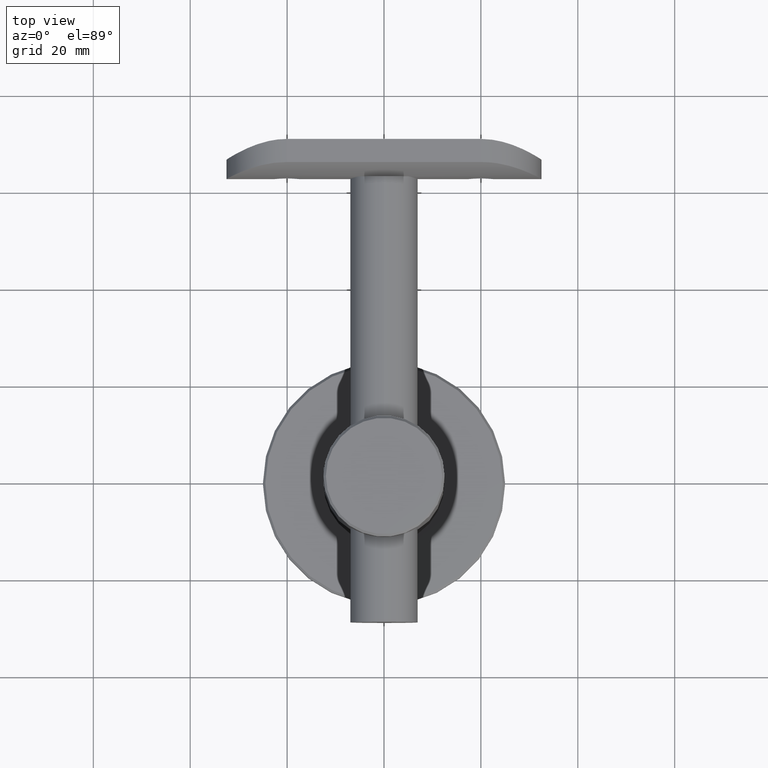
[diagram: clean part render]
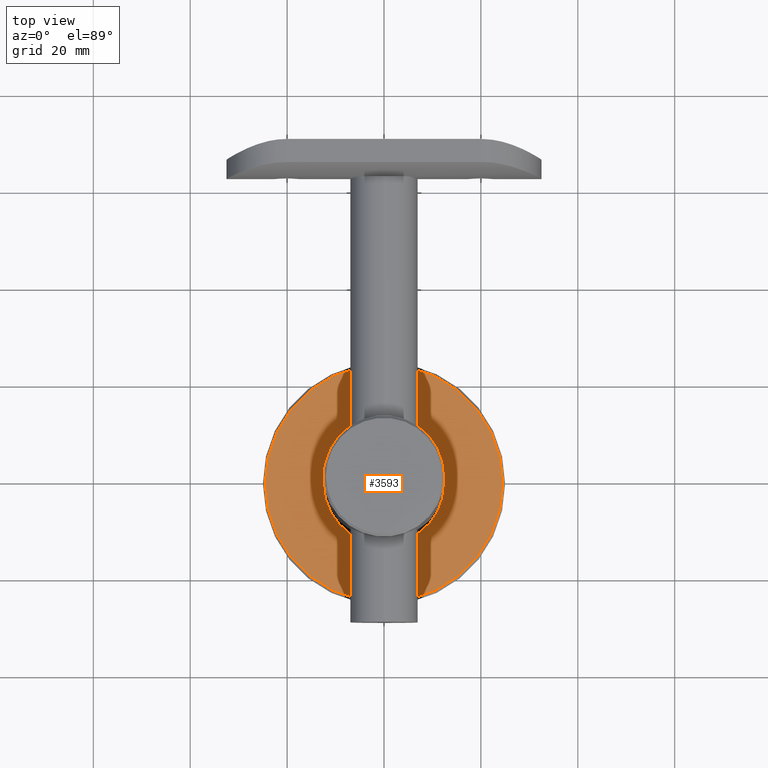
[diagram: same view with one face highlighted and labeled with its STEP entity id]
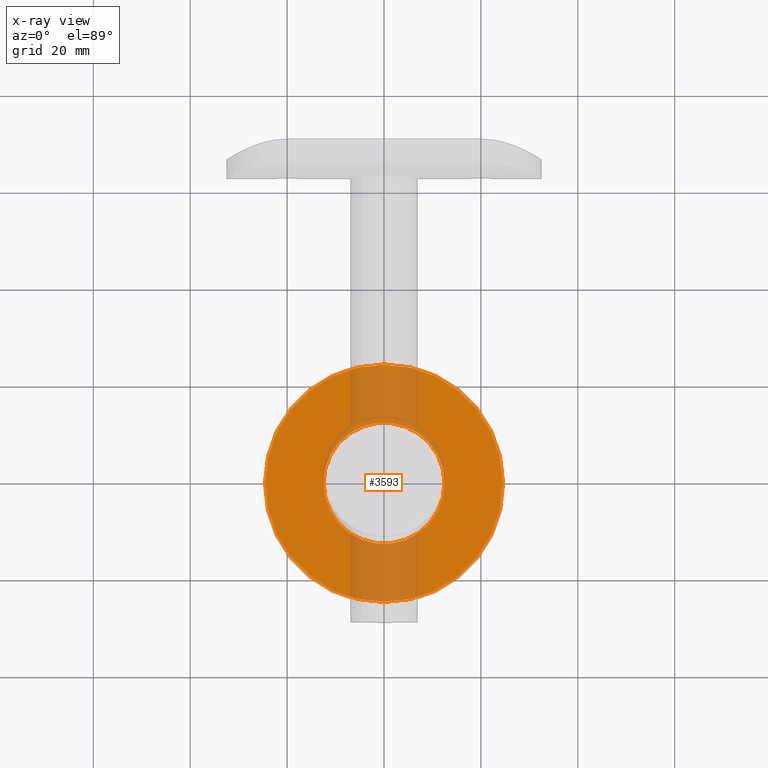
[diagram: x-ray of the same camera — body ghosted, the highlighted face saturated]
A machine part, top view. The second image highlights one B-rep face of the part: STEP entity #3593.
The next image is the same camera in x-ray: the body ghosted, the highlighted face saturated — about 26% of this face is hidden behind the body in this view.
In plain terms, the highlighted planar face has unit normal (0, 0, 1).
Its self-contained STEP definition (entity closure, byte-faithful):
#949 = DIRECTION ( 'NONE',  ( 1.000000000000000000, 0.0000000000000000000, 0.0000000000000000000 ) ) ;
#2024 = AXIS2_PLACEMENT_3D ( 'NONE', #2602, #9731, #949 ) ;
#2225 = AXIS2_PLACEMENT_3D ( 'NONE', #9170, #7820, #17879 ) ;
#2587 = CIRCLE ( 'NONE', #2024, 24.49999999999998200 ) ;
#2602 = CARTESIAN_POINT ( 'NONE',  ( 0.0000000000000000000, 0.0000000000000000000, 5.000000000000000000 ) ) ;
#3104 = AXIS2_PLACEMENT_3D ( 'NONE', #4361, #18717, #5585 ) ;
#3179 = CIRCLE ( 'NONE', #2225, 12.50000000000000000 ) ;
#3593 = ADVANCED_FACE ( 'NONE', ( #17225, #9024 ), #9498, .T. ) ;
#4361 = CARTESIAN_POINT ( 'NONE',  ( 0.0000000000000000000, 0.0000000000000000000, 5.000000000000000000 ) ) ;
#4414 = EDGE_LOOP ( 'NONE', ( #10059 ) ) ;
#5286 = EDGE_CURVE ( 'NONE', #16761, #16761, #2587, .T. ) ;
#5585 = DIRECTION ( 'NONE',  ( 1.000000000000000000, 0.0000000000000000000, -0.0000000000000000000 ) ) ;
#7820 = DIRECTION ( 'NONE',  ( 0.0000000000000000000, 0.0000000000000000000, 1.000000000000000000 ) ) ;
#9024 = FACE_BOUND ( 'NONE', #12661, .T. ) ;
#9034 = ORIENTED_EDGE ( 'NONE', *, *, #9977, .F. ) ;
#9170 = CARTESIAN_POINT ( 'NONE',  ( 0.0000000000000000000, 0.0000000000000000000, 5.000000000000004400 ) ) ;
#9498 = PLANE ( 'NONE',  #3104 ) ;
#9731 = DIRECTION ( 'NONE',  ( 0.0000000000000000000, 0.0000000000000000000, 1.000000000000000000 ) ) ;
#9977 = EDGE_CURVE ( 'NONE', #12075, #12075, #3179, .T. ) ;
#10059 = ORIENTED_EDGE ( 'NONE', *, *, #5286, .T. ) ;
#11329 = CARTESIAN_POINT ( 'NONE',  ( 24.49999999999998200, 0.0000000000000000000, 5.000000000000000000 ) ) ;
#12075 = VERTEX_POINT ( 'NONE', #12726 ) ;
#12661 = EDGE_LOOP ( 'NONE', ( #9034 ) ) ;
#12726 = CARTESIAN_POINT ( 'NONE',  ( 12.50000000000000000, 0.0000000000000000000, 5.000000000000004400 ) ) ;
#16761 = VERTEX_POINT ( 'NONE', #11329 ) ;
#17225 = FACE_OUTER_BOUND ( 'NONE', #4414, .T. ) ;
#17879 = DIRECTION ( 'NONE',  ( 1.000000000000000000, 0.0000000000000000000, 0.0000000000000000000 ) ) ;
#18717 = DIRECTION ( 'NONE',  ( 0.0000000000000000000, 0.0000000000000000000, 1.000000000000000000 ) ) ;